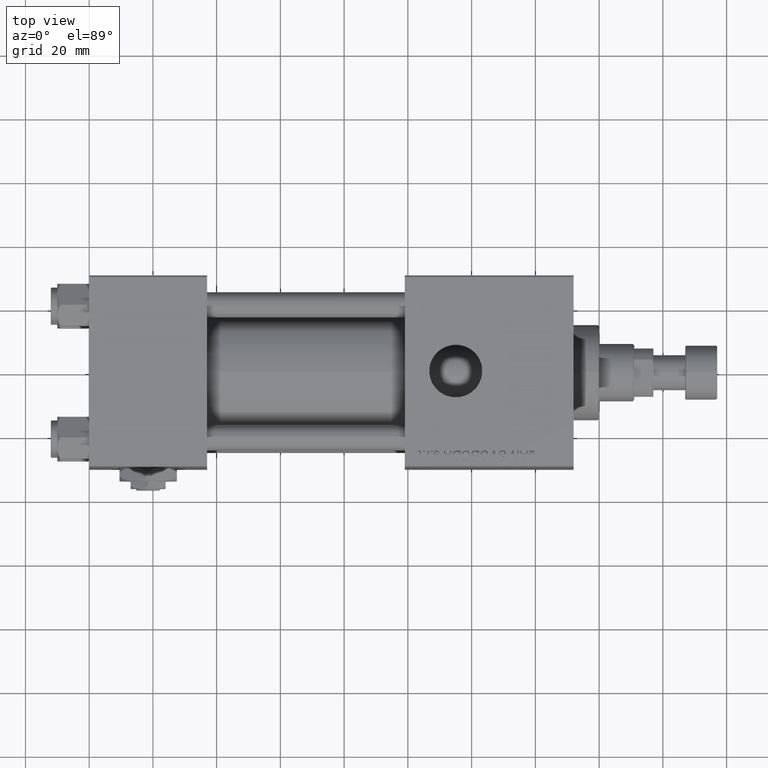
[diagram: clean part render]
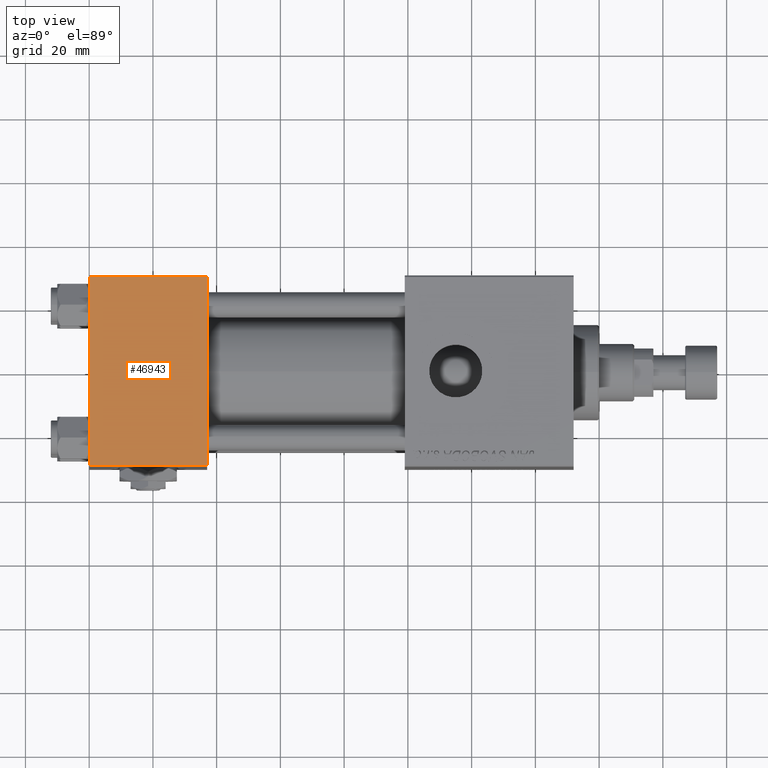
[diagram: same view with one face highlighted and labeled with its STEP entity id]
A machine part, top view. The second image highlights one B-rep face of the part: STEP entity #46943.
In plain terms, the highlighted planar face has unit normal (0, 0, -1).
Its self-contained STEP definition (entity closure, byte-faithful):
#1511 = VECTOR ( 'NONE', #1790, 1000.000000000000000 ) ;
#1790 = DIRECTION ( 'NONE',  ( 1.000000000000000000, 0.000000000000000000, 0.000000000000000000 ) ) ;
#1813 = VECTOR ( 'NONE', #40917, 1000.000000000000000 ) ;
#2033 = ORIENTED_EDGE ( 'NONE', *, *, #33226, .T. ) ;
#5243 = CARTESIAN_POINT ( 'NONE',  ( 37.00000000000000000, -29.50000000000000000, 29.99999999999999289 ) ) ;
#5274 = VERTEX_POINT ( 'NONE', #45457 ) ;
#6897 = CARTESIAN_POINT ( 'NONE',  ( 37.00000000000000000, 29.99999999999999289, 30.00000000000000000 ) ) ;
#6905 = ORIENTED_EDGE ( 'NONE', *, *, #40400, .T. ) ;
#8089 = LINE ( 'NONE', #32635, #1813 ) ;
#9916 = ORIENTED_EDGE ( 'NONE', *, *, #36278, .T. ) ;
#12105 = CARTESIAN_POINT ( 'NONE',  ( 37.00000000000000000, -29.49999999999998579, 29.99999999999999289 ) ) ;
#15171 = LINE ( 'NONE', #22908, #36652 ) ;
#17850 = DIRECTION ( 'NONE',  ( 0.000000000000000000, 1.000000000000000000, 1.156482317317871725E-16 ) ) ;
#18073 = VERTEX_POINT ( 'NONE', #47105 ) ;
#18568 = LINE ( 'NONE', #5243, #1511 ) ;
#20105 = VECTOR ( 'NONE', #37586, 1000.000000000000000 ) ;
#21276 = LINE ( 'NONE', #29308, #20105 ) ;
#21910 = VERTEX_POINT ( 'NONE', #12105 ) ;
#22112 = DIRECTION ( 'NONE',  ( 0.000000000000000000, -1.000000000000000000, -1.156482317317871725E-16 ) ) ;
#22370 = DIRECTION ( 'NONE',  ( 0.000000000000000000, 1.156482317317871725E-16, -1.000000000000000000 ) ) ;
#22908 = CARTESIAN_POINT ( 'NONE',  ( 37.00000000000000000, 29.99999999999999289, 30.00000000000000000 ) ) ;
#29308 = CARTESIAN_POINT ( 'NONE',  ( 0.000000000000000000, 29.99999999999999289, 30.00000000000000000 ) ) ;
#32635 = CARTESIAN_POINT ( 'NONE',  ( 0.000000000000000000, 29.49999999999999289, 30.00000000000000000 ) ) ;
#33226 = EDGE_CURVE ( 'NONE', #44985, #5274, #8089, .T. ) ;
#35647 = ORIENTED_EDGE ( 'NONE', *, *, #47821, .F. ) ;
#36278 = EDGE_CURVE ( 'NONE', #5274, #18073, #21276, .T. ) ;
#36652 = VECTOR ( 'NONE', #22112, 1000.000000000000000 ) ;
#37586 = DIRECTION ( 'NONE',  ( 0.000000000000000000, -1.000000000000000000, -1.156482317317871725E-16 ) ) ;
#40400 = EDGE_CURVE ( 'NONE', #18073, #21910, #18568, .T. ) ;
#40917 = DIRECTION ( 'NONE',  ( -1.000000000000000000, 0.000000000000000000, 0.000000000000000000 ) ) ;
#43300 = EDGE_LOOP ( 'NONE', ( #9916, #6905, #35647, #2033 ) ) ;
#44985 = VERTEX_POINT ( 'NONE', #45163 ) ;
#45163 = CARTESIAN_POINT ( 'NONE',  ( 37.00000000000000000, 29.49999999999999289, 30.00000000000000000 ) ) ;
#45457 = CARTESIAN_POINT ( 'NONE',  ( 0.000000000000000000, 29.49999999999999289, 30.00000000000000000 ) ) ;
#46692 = FACE_OUTER_BOUND ( 'NONE', #43300, .T. ) ;
#46943 = ADVANCED_FACE ( 'NONE', ( #46692 ), #47219, .F. ) ;
#47105 = CARTESIAN_POINT ( 'NONE',  ( 0.000000000000000000, -29.49999999999998579, 29.99999999999999289 ) ) ;
#47219 = PLANE ( 'NONE',  #48553 ) ;
#47821 = EDGE_CURVE ( 'NONE', #44985, #21910, #15171, .T. ) ;
#48553 = AXIS2_PLACEMENT_3D ( 'NONE', #6897, #22370, #17850 ) ;